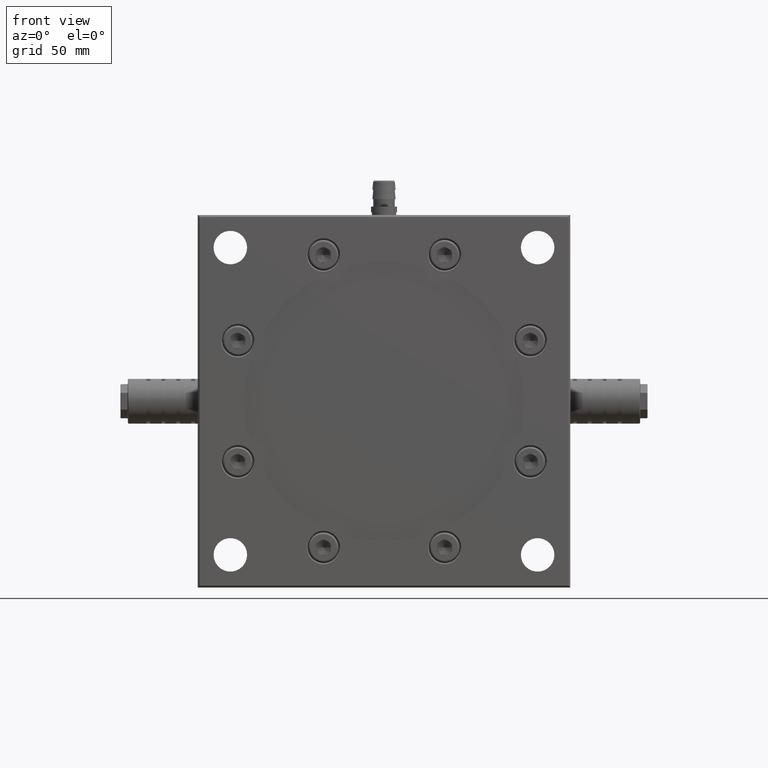
[diagram: clean part render]
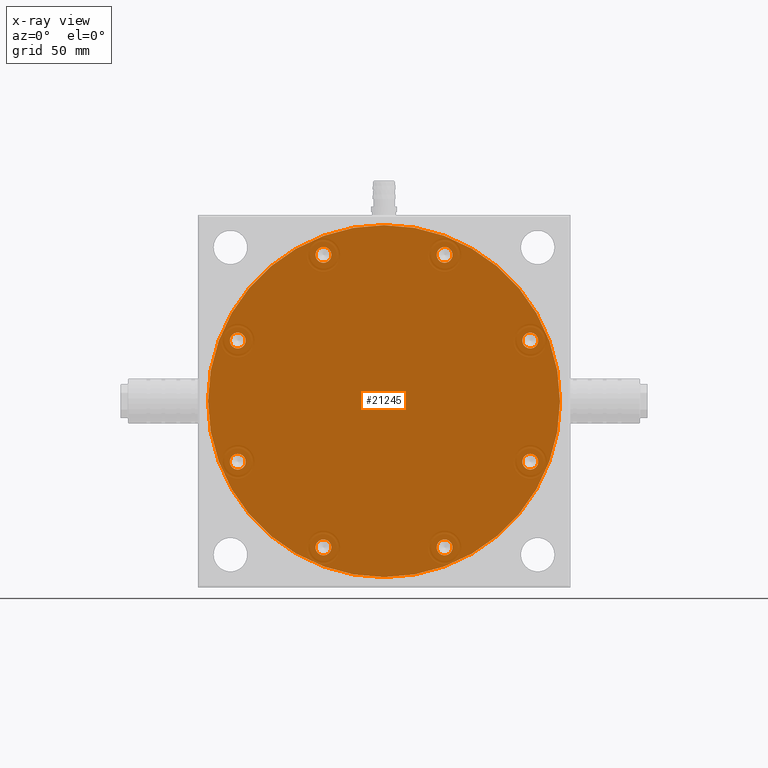
[diagram: x-ray — body ghosted, one internal face saturated and labeled with its STEP entity id]
A machine part, front view, then the same camera in x-ray: the body is ghosted and one INTERNAL B-rep face — a face not visible from any outside direction — is saturated and labeled: STEP entity #21245.
In plain terms, the highlighted planar face has unit normal (0, 1, 0).
Its self-contained STEP definition (entity closure, byte-faithful):
#387 = EDGE_CURVE ( 'NONE', #49431, #54084, #40507, .T. ) ;
#699 = AXIS2_PLACEMENT_3D ( 'NONE', #14939, #59256, #39584 ) ;
#862 = FACE_OUTER_BOUND ( 'NONE', #19810, .T. ) ;
#1105 = EDGE_CURVE ( 'NONE', #13713, #49647, #48154, .T. ) ;
#1463 = CARTESIAN_POINT ( 'NONE',  ( 32.52809175103264700, 137.0000000000000000, 82.77976026345940900 ) ) ;
#1575 = CARTESIAN_POINT ( 'NONE',  ( -78.52976026345940900, 137.0000000000000000, -32.52809175103264700 ) ) ;
#1919 = EDGE_CURVE ( 'NONE', #12472, #23213, #19742, .T. ) ;
#2599 = VERTEX_POINT ( 'NONE', #13506 ) ;
#2975 = EDGE_LOOP ( 'NONE', ( #49907, #30082 ) ) ;
#3142 = ORIENTED_EDGE ( 'NONE', *, *, #46468, .F. ) ;
#3182 = CIRCLE ( 'NONE', #62495, 4.250000000000000000 ) ;
#3932 = CARTESIAN_POINT ( 'NONE',  ( -32.52809175103264700, 137.0000000000000000, -82.77976026345940900 ) ) ;
#4044 = DIRECTION ( 'NONE',  ( 0.0000000000000000000, 1.000000000000000000, 0.0000000000000000000 ) ) ;
#4161 = CARTESIAN_POINT ( 'NONE',  ( -78.52976026345940900, 137.0000000000000000, -32.52809175103264700 ) ) ;
#4249 = CIRCLE ( 'NONE', #52372, 94.50000000000000000 ) ;
#4386 = DIRECTION ( 'NONE',  ( 0.0000000000000000000, 1.000000000000000000, 0.0000000000000000000 ) ) ;
#4622 = CIRCLE ( 'NONE', #14819, 4.250000000000003600 ) ;
#4713 = ORIENTED_EDGE ( 'NONE', *, *, #1105, .F. ) ;
#4832 = DIRECTION ( 'NONE',  ( 0.0000000000000000000, 0.0000000000000000000, 1.000000000000000000 ) ) ;
#5003 = CARTESIAN_POINT ( 'NONE',  ( 78.52976026345940900, 137.0000000000000000, 32.52809175103264700 ) ) ;
#5102 = EDGE_CURVE ( 'NONE', #50018, #23139, #9501, .T. ) ;
#5817 = EDGE_CURVE ( 'NONE', #58143, #54777, #24138, .T. ) ;
#6170 = ORIENTED_EDGE ( 'NONE', *, *, #5102, .T. ) ;
#7045 = ORIENTED_EDGE ( 'NONE', *, *, #10998, .F. ) ;
#7231 = DIRECTION ( 'NONE',  ( 0.0000000000000000000, 1.000000000000000000, 0.0000000000000000000 ) ) ;
#7533 = DIRECTION ( 'NONE',  ( 0.0000000000000000000, 0.0000000000000000000, 1.000000000000000000 ) ) ;
#7837 = VERTEX_POINT ( 'NONE', #38697 ) ;
#8000 = DIRECTION ( 'NONE',  ( 0.0000000000000000000, 0.0000000000000000000, 1.000000000000000000 ) ) ;
#8591 = CARTESIAN_POINT ( 'NONE',  ( -3.322533561435410100E-017, 137.0000000000000000, -94.50000000000000000 ) ) ;
#8624 = CARTESIAN_POINT ( 'NONE',  ( 78.52976026345940900, 137.0000000000000000, 36.77809175103265500 ) ) ;
#9501 = CIRCLE ( 'NONE', #60377, 94.50000000000000000 ) ;
#10204 = VERTEX_POINT ( 'NONE', #55118 ) ;
#10285 = ORIENTED_EDGE ( 'NONE', *, *, #44259, .F. ) ;
#10336 = FACE_BOUND ( 'NONE', #17667, .T. ) ;
#10659 = DIRECTION ( 'NONE',  ( 0.0000000000000000000, 1.000000000000000000, 0.0000000000000000000 ) ) ;
#10780 = CIRCLE ( 'NONE', #699, 4.250000000000003600 ) ;
#10998 = EDGE_CURVE ( 'NONE', #30308, #63500, #39236, .T. ) ;
#12472 = VERTEX_POINT ( 'NONE', #12699 ) ;
#12699 = CARTESIAN_POINT ( 'NONE',  ( 78.52976026345940900, 137.0000000000000000, -36.77809175103265500 ) ) ;
#13506 = CARTESIAN_POINT ( 'NONE',  ( 32.52809175103264700, 137.0000000000000000, 74.27976026345940900 ) ) ;
#13713 = VERTEX_POINT ( 'NONE', #36428 ) ;
#14401 = CARTESIAN_POINT ( 'NONE',  ( 32.52809175103264700, 137.0000000000000000, 78.52976026345940900 ) ) ;
#14464 = EDGE_CURVE ( 'NONE', #23213, #12472, #3182, .T. ) ;
#14819 = AXIS2_PLACEMENT_3D ( 'NONE', #52049, #51845, #57357 ) ;
#14939 = CARTESIAN_POINT ( 'NONE',  ( -78.52976026345940900, 137.0000000000000000, 32.52809175103264700 ) ) ;
#14990 = ORIENTED_EDGE ( 'NONE', *, *, #387, .F. ) ;
#15178 = FACE_BOUND ( 'NONE', #15368, .T. ) ;
#15368 = EDGE_LOOP ( 'NONE', ( #4713, #31611 ) ) ;
#15397 = CARTESIAN_POINT ( 'NONE',  ( 78.52976026345940900, 137.0000000000000000, 32.52809175103264700 ) ) ;
#15671 = CIRCLE ( 'NONE', #15817, 4.250000000000003600 ) ;
#15817 = AXIS2_PLACEMENT_3D ( 'NONE', #23068, #17690, #32699 ) ;
#16023 = DIRECTION ( 'NONE',  ( 0.0000000000000000000, 0.0000000000000000000, 1.000000000000000000 ) ) ;
#16184 = CARTESIAN_POINT ( 'NONE',  ( 78.52976026345940900, 137.0000000000000000, -32.52809175103264700 ) ) ;
#17140 = ORIENTED_EDGE ( 'NONE', *, *, #5817, .F. ) ;
#17171 = AXIS2_PLACEMENT_3D ( 'NONE', #32826, #36688, #7533 ) ;
#17667 = EDGE_LOOP ( 'NONE', ( #17140, #20993 ) ) ;
#17690 = DIRECTION ( 'NONE',  ( 0.0000000000000000000, 1.000000000000000000, 0.0000000000000000000 ) ) ;
#17738 = CARTESIAN_POINT ( 'NONE',  ( 32.52809175103264700, 137.0000000000000000, -78.52976026345940900 ) ) ;
#18076 = PLANE ( 'NONE',  #22574 ) ;
#18540 = CIRCLE ( 'NONE', #31053, 4.250000000000003600 ) ;
#18766 = FACE_BOUND ( 'NONE', #47106, .T. ) ;
#18877 = EDGE_CURVE ( 'NONE', #23139, #50018, #4249, .T. ) ;
#19189 = DIRECTION ( 'NONE',  ( 0.0000000000000000000, 0.0000000000000000000, 1.000000000000000000 ) ) ;
#19346 = DIRECTION ( 'NONE',  ( 0.0000000000000000000, 1.000000000000000000, 0.0000000000000000000 ) ) ;
#19401 = EDGE_CURVE ( 'NONE', #57848, #10204, #15671, .T. ) ;
#19457 = EDGE_CURVE ( 'NONE', #54084, #49431, #57836, .T. ) ;
#19742 = CIRCLE ( 'NONE', #33229, 4.250000000000000000 ) ;
#19810 = EDGE_LOOP ( 'NONE', ( #6170, #62775 ) ) ;
#20251 = VERTEX_POINT ( 'NONE', #1463 ) ;
#20748 = DIRECTION ( 'NONE',  ( 0.0000000000000000000, 1.000000000000000000, 0.0000000000000000000 ) ) ;
#20993 = ORIENTED_EDGE ( 'NONE', *, *, #24407, .F. ) ;
#21245 = ADVANCED_FACE ( 'NONE', ( #18766, #10336, #42447, #41269, #15178, #32795, #50806, #47742, #862 ), #18076, .T. ) ;
#21991 = CARTESIAN_POINT ( 'NONE',  ( -78.52976026345940900, 137.0000000000000000, -36.77809175103265500 ) ) ;
#22095 = DIRECTION ( 'NONE',  ( 0.0000000000000000000, 0.0000000000000000000, 1.000000000000000000 ) ) ;
#22458 = EDGE_LOOP ( 'NONE', ( #44481, #10285 ) ) ;
#22574 = AXIS2_PLACEMENT_3D ( 'NONE', #57254, #62624, #8000 ) ;
#23068 = CARTESIAN_POINT ( 'NONE',  ( -78.52976026345940900, 137.0000000000000000, 32.52809175103264700 ) ) ;
#23139 = VERTEX_POINT ( 'NONE', #60418 ) ;
#23213 = VERTEX_POINT ( 'NONE', #32813 ) ;
#23965 = DIRECTION ( 'NONE',  ( 0.0000000000000000000, 1.000000000000000000, 0.0000000000000000000 ) ) ;
#24138 = CIRCLE ( 'NONE', #34645, 4.250000000000003600 ) ;
#24407 = EDGE_CURVE ( 'NONE', #54777, #58143, #4622, .T. ) ;
#24594 = AXIS2_PLACEMENT_3D ( 'NONE', #1575, #40181, #35233 ) ;
#26150 = EDGE_CURVE ( 'NONE', #36538, #7837, #56705, .T. ) ;
#26275 = AXIS2_PLACEMENT_3D ( 'NONE', #28041, #4044, #28469 ) ;
#27143 = EDGE_CURVE ( 'NONE', #49647, #13713, #61117, .T. ) ;
#28041 = CARTESIAN_POINT ( 'NONE',  ( 32.52809175103264700, 137.0000000000000000, -78.52976026345940900 ) ) ;
#28079 = CARTESIAN_POINT ( 'NONE',  ( -3.322533561435410100E-017, 137.0000000000000000, 3.808543174728029500E-015 ) ) ;
#28469 = DIRECTION ( 'NONE',  ( 0.0000000000000000000, 0.0000000000000000000, 1.000000000000000000 ) ) ;
#28581 = DIRECTION ( 'NONE',  ( 0.0000000000000000000, 1.000000000000000000, 0.0000000000000000000 ) ) ;
#29947 = EDGE_CURVE ( 'NONE', #63500, #30308, #38718, .T. ) ;
#30082 = ORIENTED_EDGE ( 'NONE', *, *, #1919, .F. ) ;
#30185 = DIRECTION ( 'NONE',  ( 0.0000000000000000000, 1.000000000000000000, 0.0000000000000000000 ) ) ;
#30308 = VERTEX_POINT ( 'NONE', #49811 ) ;
#31053 = AXIS2_PLACEMENT_3D ( 'NONE', #14401, #19346, #44367 ) ;
#31277 = DIRECTION ( 'NONE',  ( 0.0000000000000000000, 1.000000000000000000, 0.0000000000000000000 ) ) ;
#31611 = ORIENTED_EDGE ( 'NONE', *, *, #27143, .F. ) ;
#32699 = DIRECTION ( 'NONE',  ( 0.0000000000000000000, 0.0000000000000000000, 1.000000000000000000 ) ) ;
#32795 = FACE_BOUND ( 'NONE', #45976, .T. ) ;
#32813 = CARTESIAN_POINT ( 'NONE',  ( 78.52976026345940900, 137.0000000000000000, -28.27809175103264700 ) ) ;
#32826 = CARTESIAN_POINT ( 'NONE',  ( -32.52809175103264700, 137.0000000000000000, -78.52976026345940900 ) ) ;
#33229 = AXIS2_PLACEMENT_3D ( 'NONE', #16184, #50048, #55377 ) ;
#33261 = CARTESIAN_POINT ( 'NONE',  ( 32.52809175103264700, 137.0000000000000000, -82.77976026345940900 ) ) ;
#33799 = CARTESIAN_POINT ( 'NONE',  ( 78.52976026345940900, 137.0000000000000000, -32.52809175103264700 ) ) ;
#34052 = ORIENTED_EDGE ( 'NONE', *, *, #29947, .F. ) ;
#34219 = DIRECTION ( 'NONE',  ( 0.0000000000000000000, 1.000000000000000000, 0.0000000000000000000 ) ) ;
#34645 = AXIS2_PLACEMENT_3D ( 'NONE', #58816, #23965, #4832 ) ;
#34806 = CIRCLE ( 'NONE', #26275, 4.250000000000003600 ) ;
#34827 = ORIENTED_EDGE ( 'NONE', *, *, #43690, .F. ) ;
#35233 = DIRECTION ( 'NONE',  ( 0.0000000000000000000, 0.0000000000000000000, 1.000000000000000000 ) ) ;
#35296 = DIRECTION ( 'NONE',  ( 0.0000000000000000000, 0.0000000000000000000, 1.000000000000000000 ) ) ;
#35975 = CARTESIAN_POINT ( 'NONE',  ( -78.52976026345940900, 137.0000000000000000, -28.27809175103264700 ) ) ;
#36428 = CARTESIAN_POINT ( 'NONE',  ( -32.52809175103264700, 137.0000000000000000, -74.27976026345940900 ) ) ;
#36538 = VERTEX_POINT ( 'NONE', #33261 ) ;
#36688 = DIRECTION ( 'NONE',  ( 0.0000000000000000000, 1.000000000000000000, 0.0000000000000000000 ) ) ;
#36879 = ORIENTED_EDGE ( 'NONE', *, *, #19457, .F. ) ;
#37355 = AXIS2_PLACEMENT_3D ( 'NONE', #51010, #31277, #22095 ) ;
#37884 = CARTESIAN_POINT ( 'NONE',  ( -78.52976026345940900, 137.0000000000000000, 36.77809175103265500 ) ) ;
#38697 = CARTESIAN_POINT ( 'NONE',  ( 32.52809175103264700, 137.0000000000000000, -74.27976026345940900 ) ) ;
#38718 = CIRCLE ( 'NONE', #50769, 4.250000000000003600 ) ;
#39236 = CIRCLE ( 'NONE', #46725, 4.250000000000003600 ) ;
#39584 = DIRECTION ( 'NONE',  ( 0.0000000000000000000, 0.0000000000000000000, 1.000000000000000000 ) ) ;
#40113 = CARTESIAN_POINT ( 'NONE',  ( -32.52809175103264700, 137.0000000000000000, 82.77976026345940900 ) ) ;
#40181 = DIRECTION ( 'NONE',  ( 0.0000000000000000000, 1.000000000000000000, 0.0000000000000000000 ) ) ;
#40507 = CIRCLE ( 'NONE', #24594, 4.250000000000000000 ) ;
#41269 = FACE_BOUND ( 'NONE', #56430, .T. ) ;
#42164 = DIRECTION ( 'NONE',  ( 0.0000000000000000000, 0.0000000000000000000, 1.000000000000000000 ) ) ;
#42447 = FACE_BOUND ( 'NONE', #22458, .T. ) ;
#42466 = DIRECTION ( 'NONE',  ( 0.0000000000000000000, 0.0000000000000000000, 1.000000000000000000 ) ) ;
#43174 = DIRECTION ( 'NONE',  ( 0.0000000000000000000, 0.0000000000000000000, 1.000000000000000000 ) ) ;
#43690 = EDGE_CURVE ( 'NONE', #2599, #20251, #18540, .T. ) ;
#44259 = EDGE_CURVE ( 'NONE', #10204, #57848, #10780, .T. ) ;
#44367 = DIRECTION ( 'NONE',  ( 0.0000000000000000000, 0.0000000000000000000, 1.000000000000000000 ) ) ;
#44481 = ORIENTED_EDGE ( 'NONE', *, *, #19401, .F. ) ;
#44921 = CARTESIAN_POINT ( 'NONE',  ( -32.52809175103264700, 137.0000000000000000, -78.52976026345940900 ) ) ;
#45386 = CARTESIAN_POINT ( 'NONE',  ( -3.322533561435410100E-017, 137.0000000000000000, 3.808543174728029500E-015 ) ) ;
#45976 = EDGE_LOOP ( 'NONE', ( #54004, #49810 ) ) ;
#46468 = EDGE_CURVE ( 'NONE', #20251, #2599, #57098, .T. ) ;
#46725 = AXIS2_PLACEMENT_3D ( 'NONE', #5003, #4386, #19189 ) ;
#47106 = EDGE_LOOP ( 'NONE', ( #3142, #34827 ) ) ;
#47742 = FACE_BOUND ( 'NONE', #58810, .T. ) ;
#47819 = DIRECTION ( 'NONE',  ( 0.0000000000000000000, 1.000000000000000000, 0.0000000000000000000 ) ) ;
#48154 = CIRCLE ( 'NONE', #17171, 4.250000000000003600 ) ;
#49431 = VERTEX_POINT ( 'NONE', #21991 ) ;
#49647 = VERTEX_POINT ( 'NONE', #3932 ) ;
#49810 = ORIENTED_EDGE ( 'NONE', *, *, #26150, .F. ) ;
#49811 = CARTESIAN_POINT ( 'NONE',  ( 78.52976026345940900, 137.0000000000000000, 28.27809175103264700 ) ) ;
#49907 = ORIENTED_EDGE ( 'NONE', *, *, #14464, .F. ) ;
#50018 = VERTEX_POINT ( 'NONE', #8591 ) ;
#50048 = DIRECTION ( 'NONE',  ( 0.0000000000000000000, 1.000000000000000000, 0.0000000000000000000 ) ) ;
#50769 = AXIS2_PLACEMENT_3D ( 'NONE', #15397, #20748, #59920 ) ;
#50806 = FACE_BOUND ( 'NONE', #2975, .T. ) ;
#51010 = CARTESIAN_POINT ( 'NONE',  ( 32.52809175103264700, 137.0000000000000000, 78.52976026345940900 ) ) ;
#51845 = DIRECTION ( 'NONE',  ( 0.0000000000000000000, 1.000000000000000000, 0.0000000000000000000 ) ) ;
#52049 = CARTESIAN_POINT ( 'NONE',  ( -32.52809175103264700, 137.0000000000000000, 78.52976026345940900 ) ) ;
#52372 = AXIS2_PLACEMENT_3D ( 'NONE', #45386, #30185, #16023 ) ;
#52832 = AXIS2_PLACEMENT_3D ( 'NONE', #4161, #28581, #43174 ) ;
#54004 = ORIENTED_EDGE ( 'NONE', *, *, #57629, .F. ) ;
#54084 = VERTEX_POINT ( 'NONE', #35975 ) ;
#54777 = VERTEX_POINT ( 'NONE', #56877 ) ;
#55118 = CARTESIAN_POINT ( 'NONE',  ( -78.52976026345940900, 137.0000000000000000, 28.27809175103264700 ) ) ;
#55377 = DIRECTION ( 'NONE',  ( 0.0000000000000000000, 0.0000000000000000000, 1.000000000000000000 ) ) ;
#55538 = AXIS2_PLACEMENT_3D ( 'NONE', #17738, #7231, #42164 ) ;
#56430 = EDGE_LOOP ( 'NONE', ( #36879, #14990 ) ) ;
#56705 = CIRCLE ( 'NONE', #55538, 4.250000000000003600 ) ;
#56877 = CARTESIAN_POINT ( 'NONE',  ( -32.52809175103264700, 137.0000000000000000, 74.27976026345940900 ) ) ;
#57098 = CIRCLE ( 'NONE', #37355, 4.250000000000003600 ) ;
#57228 = AXIS2_PLACEMENT_3D ( 'NONE', #44921, #10659, #35296 ) ;
#57254 = CARTESIAN_POINT ( 'NONE',  ( -3.322533561435410100E-017, 137.0000000000000000, 3.808543174728029500E-015 ) ) ;
#57357 = DIRECTION ( 'NONE',  ( 0.0000000000000000000, 0.0000000000000000000, 1.000000000000000000 ) ) ;
#57629 = EDGE_CURVE ( 'NONE', #7837, #36538, #34806, .T. ) ;
#57836 = CIRCLE ( 'NONE', #52832, 4.250000000000000000 ) ;
#57848 = VERTEX_POINT ( 'NONE', #37884 ) ;
#58143 = VERTEX_POINT ( 'NONE', #40113 ) ;
#58810 = EDGE_LOOP ( 'NONE', ( #34052, #7045 ) ) ;
#58816 = CARTESIAN_POINT ( 'NONE',  ( -32.52809175103264700, 137.0000000000000000, 78.52976026345940900 ) ) ;
#59256 = DIRECTION ( 'NONE',  ( 0.0000000000000000000, 1.000000000000000000, 0.0000000000000000000 ) ) ;
#59920 = DIRECTION ( 'NONE',  ( 0.0000000000000000000, 0.0000000000000000000, 1.000000000000000000 ) ) ;
#60377 = AXIS2_PLACEMENT_3D ( 'NONE', #28079, #47819, #42466 ) ;
#60418 = CARTESIAN_POINT ( 'NONE',  ( 1.157030308630681700E-014, 137.0000000000000000, 94.50000000000000000 ) ) ;
#61117 = CIRCLE ( 'NONE', #57228, 4.250000000000003600 ) ;
#62495 = AXIS2_PLACEMENT_3D ( 'NONE', #33799, #34219, #63337 ) ;
#62624 = DIRECTION ( 'NONE',  ( 0.0000000000000000000, 1.000000000000000000, 0.0000000000000000000 ) ) ;
#62775 = ORIENTED_EDGE ( 'NONE', *, *, #18877, .T. ) ;
#63337 = DIRECTION ( 'NONE',  ( 0.0000000000000000000, 0.0000000000000000000, 1.000000000000000000 ) ) ;
#63500 = VERTEX_POINT ( 'NONE', #8624 ) ;